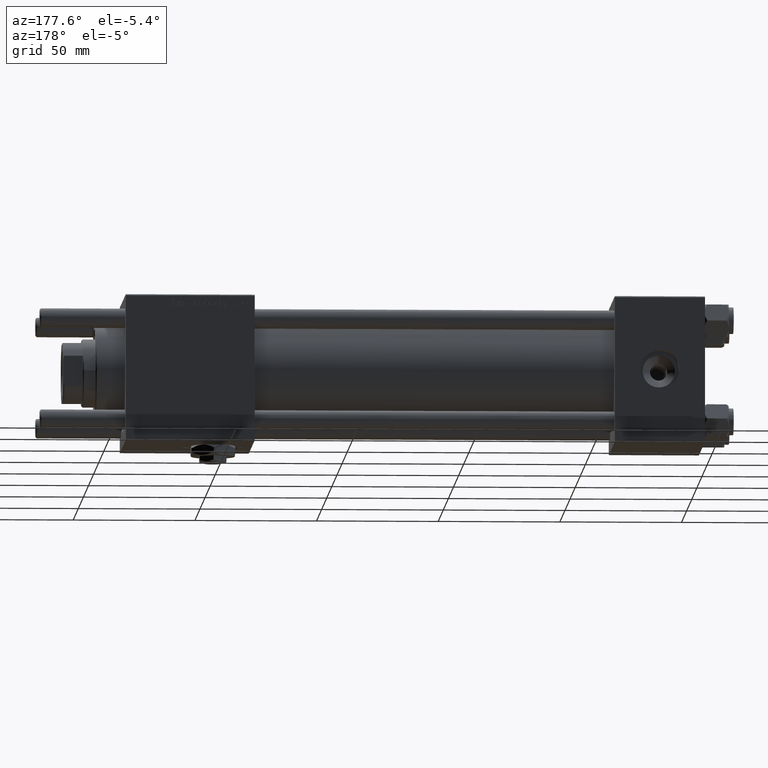
[diagram: clean part render]
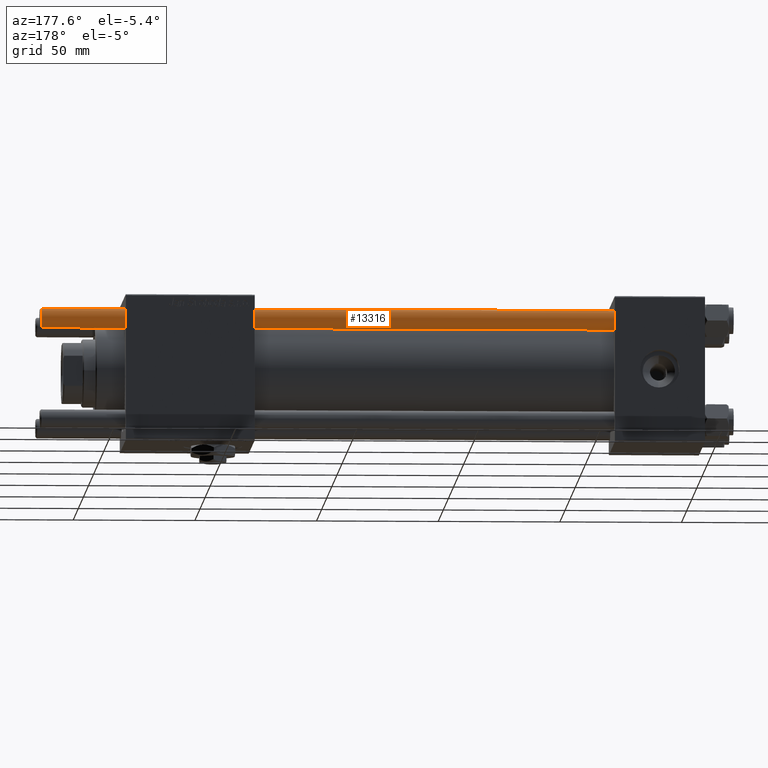
[diagram: same view with one face highlighted and labeled with its STEP entity id]
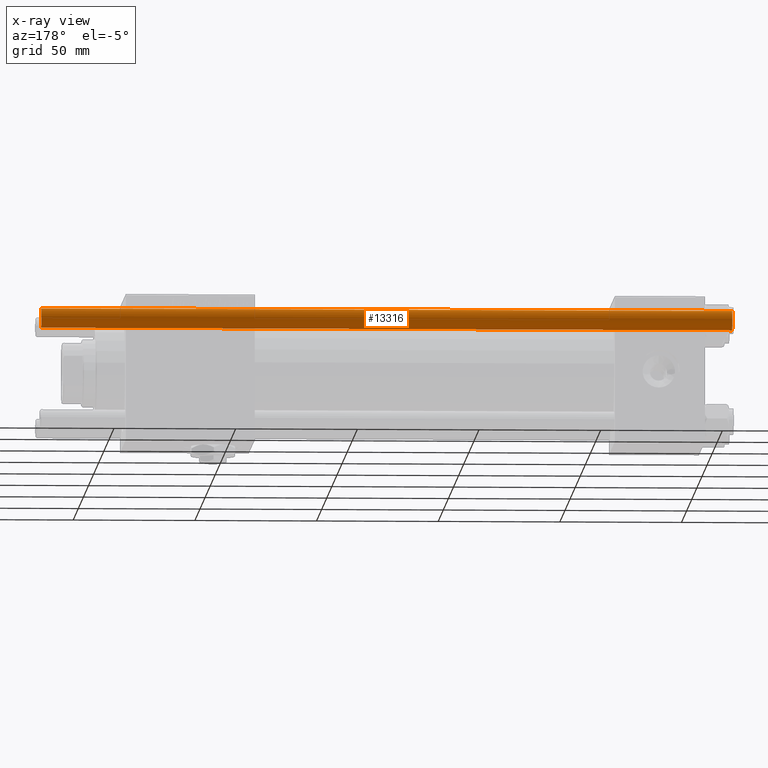
[diagram: x-ray of the same camera — body ghosted, the highlighted face saturated]
A machine part, auxiliary view. The second image highlights one B-rep face of the part: STEP entity #13316.
The next image is the same camera in x-ray: the body ghosted, the highlighted face saturated — about 0% of this face is hidden behind the body in this view.
In plain terms, the highlighted cylindrical surface (edge-blend (fillet) strip) has radius 4 mm, axis along (1, -0, -0).
Its self-contained STEP definition (entity closure, byte-faithful):
#1297 = DIRECTION ( 'NONE',  ( -0.000000000000000000, -0.000000000000000000, -1.000000000000000000 ) ) ;
#4999 = EDGE_CURVE ( 'NONE', #42309, #36566, #52757, .T. ) ;
#6684 = DIRECTION ( 'NONE',  ( -1.000000000000000000, 0.000000000000000000, 0.000000000000000000 ) ) ;
#7350 = CARTESIAN_POINT ( 'NONE',  ( 4.000000000000000000, 4.898587196589412829E-16, 0.5000000000000004441 ) ) ;
#8642 = DIRECTION ( 'NONE',  ( -0.000000000000000000, -0.000000000000000000, -1.000000000000000000 ) ) ;
#9238 = VECTOR ( 'NONE', #1297, 1000.000000000000000 ) ;
#9663 = LINE ( 'NONE', #27854, #9238 ) ;
#10876 = CARTESIAN_POINT ( 'NONE',  ( 0.000000000000000000, 0.000000000000000000, 285.0000000000000000 ) ) ;
#11450 = ORIENTED_EDGE ( 'NONE', *, *, #20368, .F. ) ;
#12290 = DIRECTION ( 'NONE',  ( 1.000000000000000000, 0.000000000000000000, 0.000000000000000000 ) ) ;
#13316 = ADVANCED_FACE ( 'NONE', ( #51771 ), #29357, .T. ) ;
#15253 = VERTEX_POINT ( 'NONE', #7350 ) ;
#16639 = AXIS2_PLACEMENT_3D ( 'NONE', #10876, #47584, #6684 ) ;
#17390 = ORIENTED_EDGE ( 'NONE', *, *, #26279, .T. ) ;
#17490 = DIRECTION ( 'NONE',  ( -0.000000000000000000, -0.000000000000000000, 1.000000000000000000 ) ) ;
#18023 = CARTESIAN_POINT ( 'NONE',  ( -4.000000000000000000, 0.000000000000000000, 0.5000000000000004441 ) ) ;
#20206 = EDGE_CURVE ( 'NONE', #36566, #15253, #9663, .T. ) ;
#20368 = EDGE_CURVE ( 'NONE', #42309, #37426, #43369, .T. ) ;
#21007 = ORIENTED_EDGE ( 'NONE', *, *, #20206, .T. ) ;
#26185 = ORIENTED_EDGE ( 'NONE', *, *, #4999, .T. ) ;
#26279 = EDGE_CURVE ( 'NONE', #15253, #37426, #29324, .T. ) ;
#26703 = CARTESIAN_POINT ( 'NONE',  ( -4.000000000000000000, 0.000000000000000000, 284.5000000000000568 ) ) ;
#26740 = DIRECTION ( 'NONE',  ( 1.000000000000000000, 0.000000000000000000, 0.000000000000000000 ) ) ;
#27854 = CARTESIAN_POINT ( 'NONE',  ( 4.000000000000000000, 4.898587196589412829E-16, 285.0000000000000000 ) ) ;
#29324 = CIRCLE ( 'NONE', #42703, 4.000000000000000000 ) ;
#29357 = CYLINDRICAL_SURFACE ( 'NONE', #16639, 4.000000000000000000 ) ;
#30208 = VECTOR ( 'NONE', #8642, 1000.000000000000000 ) ;
#34949 = CARTESIAN_POINT ( 'NONE',  ( 0.000000000000000000, 0.000000000000000000, 284.5000000000000568 ) ) ;
#35376 = EDGE_LOOP ( 'NONE', ( #26185, #21007, #17390, #11450 ) ) ;
#35914 = CARTESIAN_POINT ( 'NONE',  ( 4.000000000000000000, 4.898587196589412829E-16, 284.5000000000000568 ) ) ;
#36566 = VERTEX_POINT ( 'NONE', #35914 ) ;
#37426 = VERTEX_POINT ( 'NONE', #18023 ) ;
#42309 = VERTEX_POINT ( 'NONE', #26703 ) ;
#42703 = AXIS2_PLACEMENT_3D ( 'NONE', #53318, #17490, #26740 ) ;
#43369 = LINE ( 'NONE', #50720, #30208 ) ;
#47055 = AXIS2_PLACEMENT_3D ( 'NONE', #34949, #53190, #12290 ) ;
#47584 = DIRECTION ( 'NONE',  ( -0.000000000000000000, -0.000000000000000000, -1.000000000000000000 ) ) ;
#50720 = CARTESIAN_POINT ( 'NONE',  ( -4.000000000000000000, 0.000000000000000000, 285.0000000000000000 ) ) ;
#51771 = FACE_OUTER_BOUND ( 'NONE', #35376, .T. ) ;
#52757 = CIRCLE ( 'NONE', #47055, 4.000000000000000000 ) ;
#53190 = DIRECTION ( 'NONE',  ( 0.000000000000000000, 0.000000000000000000, -1.000000000000000000 ) ) ;
#53318 = CARTESIAN_POINT ( 'NONE',  ( 0.000000000000000000, 0.000000000000000000, 0.5000000000000004441 ) ) ;